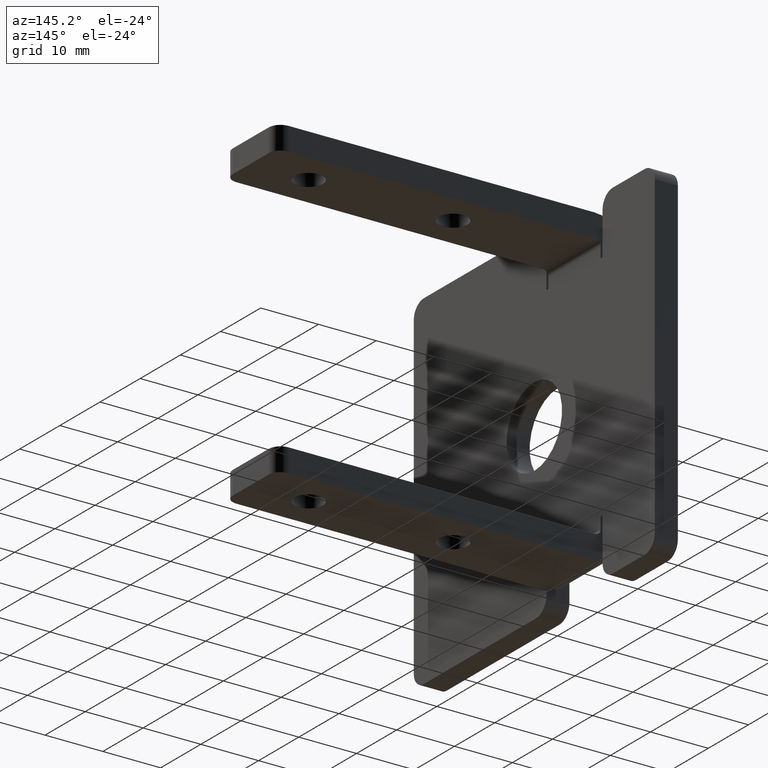
[diagram: clean part render]
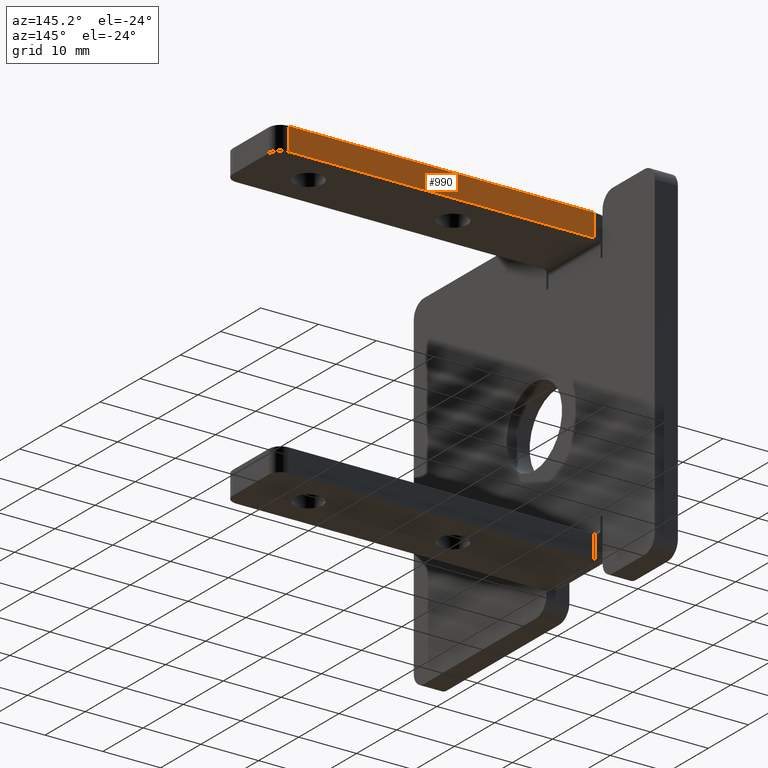
[diagram: same view with one face highlighted and labeled with its STEP entity id]
A machine part, auxiliary view. The second image highlights one B-rep face of the part: STEP entity #990.
In plain terms, the highlighted planar face has unit normal (0, 1, -0).
Its self-contained STEP definition (entity closure, byte-faithful):
#34=PLANE('',#1108);
#75=FACE_OUTER_BOUND('',#134,.T.);
#134=EDGE_LOOP('',(#790,#791,#792,#793));
#236=LINE('',#1674,#329);
#237=LINE('',#1677,#330);
#238=LINE('',#1679,#331);
#239=LINE('',#1680,#332);
#329=VECTOR('',#1342,10.);
#330=VECTOR('',#1345,2.76);
#331=VECTOR('',#1346,10.);
#332=VECTOR('',#1347,10.);
#495=VERTEX_POINT('',#1667);
#498=VERTEX_POINT('',#1672);
#499=VERTEX_POINT('',#1676);
#500=VERTEX_POINT('',#1678);
#611=EDGE_CURVE('',#498,#495,#236,.T.);
#612=EDGE_CURVE('',#498,#499,#237,.T.);
#613=EDGE_CURVE('',#499,#500,#238,.T.);
#614=EDGE_CURVE('',#500,#495,#239,.T.);
#790=ORIENTED_EDGE('',*,*,#611,.F.);
#791=ORIENTED_EDGE('',*,*,#612,.T.);
#792=ORIENTED_EDGE('',*,*,#613,.T.);
#793=ORIENTED_EDGE('',*,*,#614,.T.);
#990=ADVANCED_FACE('',(#75),#34,.T.);
#1108=AXIS2_PLACEMENT_3D('',#1675,#1343,#1344);
#1342=DIRECTION('',(-9.49410759657493E-16,6.34413156928661E-16,1.));
#1343=DIRECTION('center_axis',(0.,1.,-6.34413156928661E-16));
#1344=DIRECTION('ref_axis',(1.,5.91645678915759E-31,9.49410759657493E-16));
#1345=DIRECTION('',(-1.,-5.35910941046883E-31,-8.88178419700125E-16));
#1346=DIRECTION('',(-9.49410759657493E-16,6.34413156928661E-16,1.));
#1347=DIRECTION('',(1.,5.91645678915759E-31,9.49410759657493E-16));
#1667=CARTESIAN_POINT('',(58.,16.5000000000001,27.0000000000019));
#1672=CARTESIAN_POINT('',(58.,16.5000000000001,23.0000000000019));
#1674=CARTESIAN_POINT('',(58.,16.5000000000001,23.0000000000019));
#1675=CARTESIAN_POINT('Origin',(5.00000000000001,16.5000000000001,23.0000000000018));
#1676=CARTESIAN_POINT('',(5.,16.5000000000001,23.0000000000018));
#1677=CARTESIAN_POINT('',(-3.67079572390782,16.5000000000001,23.0000000000018));
#1678=CARTESIAN_POINT('',(5.,16.5000000000001,27.0000000000018));
#1679=CARTESIAN_POINT('',(5.00000000000001,16.5000000000001,23.8800000000018));
#1680=CARTESIAN_POINT('',(5.00000000000001,16.5000000000001,27.0000000000018));